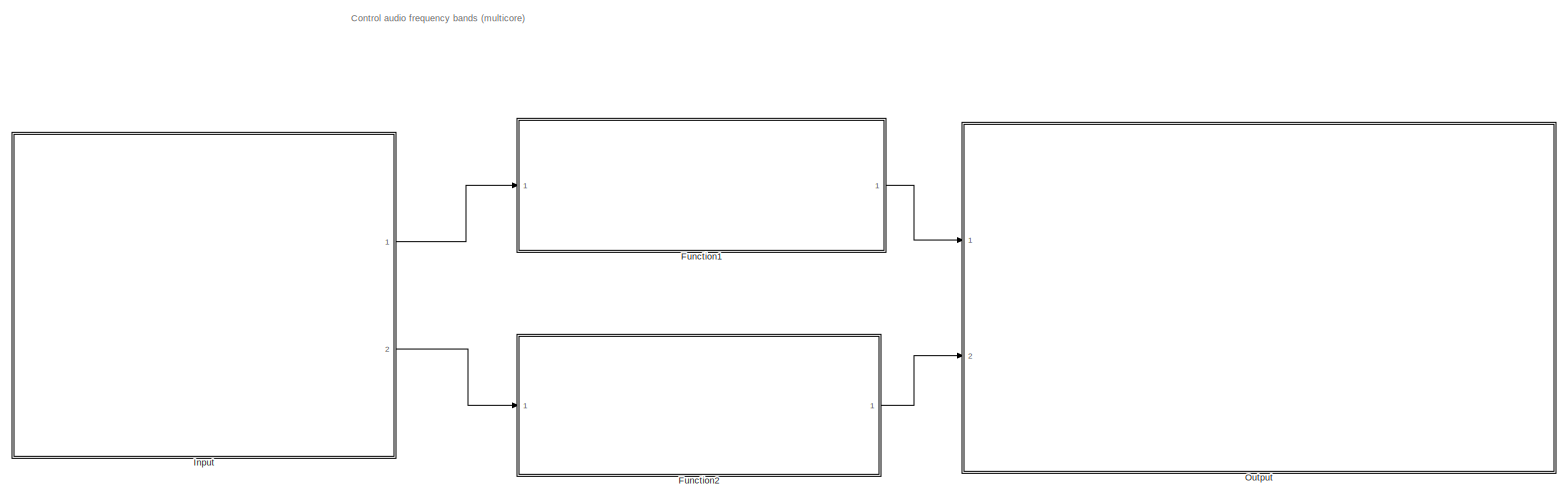
[diagram: root canvas - part 1/2, full width, middle band]
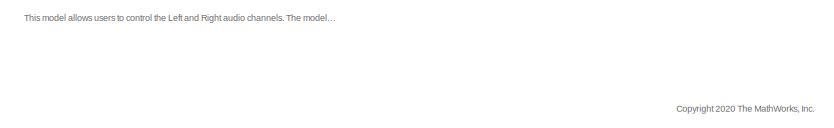
[diagram: root canvas - part 2/2, bottom left region]
MODEL slx_893cd9e0caa3
KIND model
CONFIG AbsTol = auto
CONFIG EnableMultiTasking = on
CONFIG FixedStep = auto
CONFIG MaxStep = auto
CONFIG MinStep = auto
CONFIG RelTol = 1e-3
CONFIG SampleTimeConstraint = Unconstrained
CONFIG SolverName = FixedStepAuto
CONFIG StartTime = 0.0
CONFIG StopTime = 10.0
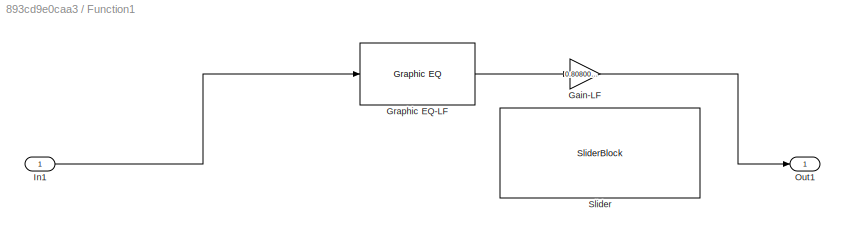
BLOCK [SubSystem] Function1
  Ports = [1, 1]
  RequestExecContextInheritance = off
  TreatAsAtomicUnit = on
BLOCK [Gain] Function1/Gain-LF
  Gain = 0.8080000000000001
  OutDataTypeStr = single
BLOCK [Reference] Function1/Graphic EQ-LF  REF=audiofilters/Graphic EQ
  Ports = [1, 1]
  SourceBlock = audiofilters/Graphic EQ
  SourceProductBaseCode = AU
  SourceType = audio.simulink.GraphicEQ
BLOCK [Inport] Function1/In1
BLOCK [Outport] Function1/Out1
BLOCK [SliderBlock] Function1/Slider
  LabelPosition = Bottom
  ScaleMax = 1
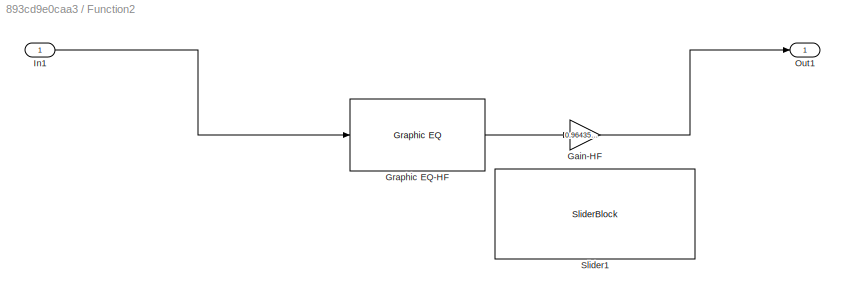
BLOCK [SubSystem] Function2
  Ports = [1, 1]
  RequestExecContextInheritance = off
  TreatAsAtomicUnit = on
BLOCK [Gain] Function2/Gain-HF
  Gain = 0.9643520823982061
  OutDataTypeStr = single
BLOCK [Reference] Function2/Graphic EQ-HF  REF=audiofilters/Graphic EQ
  Ports = [1, 1]
  SourceBlock = audiofilters/Graphic EQ
  SourceProductBaseCode = AU
  SourceType = audio.simulink.GraphicEQ
BLOCK [Inport] Function2/In1
BLOCK [Outport] Function2/Out1
BLOCK [SliderBlock] Function2/Slider1
  LabelPosition = Bottom
  ScaleMax = 1
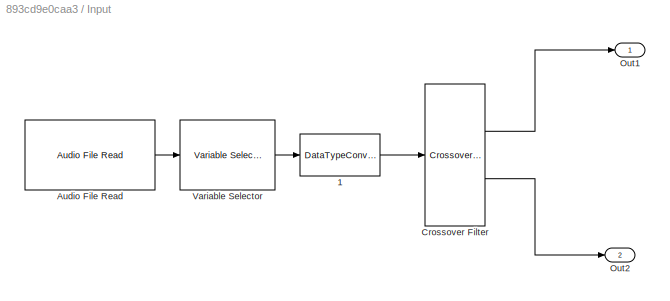
BLOCK [SubSystem] Input
  Ports = [0, 2]
  RequestExecContextInheritance = off
  TreatAsAtomicUnit = on
BLOCK [DataTypeConversion] Input/ 1
  OutDataTypeStr = single
  RndMeth = Floor
  SaturateOnIntegerOverflow = off
BLOCK [Reference] Input/Audio File Read  REF=raspberrypiAVlib/Audio File Read
  Ports = [0, 1]
  SourceBlock = raspberrypiAVlib/Audio File Read
  SourceProductBaseCode = RASPPI
  SourceType = codertarget.raspi.internal.RaspiAudioFileRead
BLOCK [Reference] Input/Crossover Filter  REF=audiofilters/Crossover Filter
  Ports = [1, 2]
  SourceBlock = audiofilters/Crossover Filter
  SourceProductBaseCode = AU
  SourceType = audio.simulink.crossover
BLOCK [Outport] Input/Out1
BLOCK [Outport] Input/Out2
  Port = 2
BLOCK [Reference] Input/Variable Selector  REF=dspindex/Variable
Selector
  Ports = [1, 1]
  SourceBlock = dspindex/Variable\nSelector
  SourceProductBaseCode = DS
  SourceType = Variable Selector
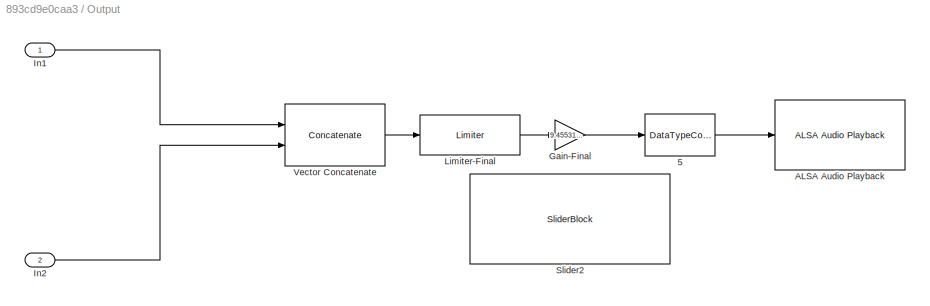
BLOCK [SubSystem] Output
  Ports = [2]
  RequestExecContextInheritance = off
  TreatAsAtomicUnit = on
BLOCK [DataTypeConversion] Output/ 5
  OutDataTypeStr = int16
  RndMeth = Floor
  SaturateOnIntegerOverflow = off
BLOCK [Reference] Output/ALSA Audio Playback  REF=raspberrypiAVlib/ALSA Audio Playback
  Ports = [1]
  SourceBlock = raspberrypiAVlib/ALSA Audio Playback
  SourceProductBaseCode = RASPPI
  SourceType = codertarget.raspi.internal.RaspiALSAAudioPlayback
BLOCK [Gain] Output/Gain-Final
  Gain = 9.455319667862447
  OutDataTypeStr = int16
BLOCK [Inport] Output/In1
BLOCK [Inport] Output/In2
  Port = 2
BLOCK [Reference] Output/Limiter-Final  REF=audiodynamicrange/Limiter
  Ports = [1, 1]
  SourceBlock = audiodynamicrange/Limiter
  SourceProductBaseCode = AU
  SourceType = audio.simulink.DynamicRangeLimiter
BLOCK [SliderBlock] Output/Slider2
  LabelPosition = Bottom
  ScaleMax = 10
BLOCK [Concatenate] Output/Vector Concatenate
  ConcatenateDimension = 2
  Mode = Multidimensional array
  Ports = [2, 1]
ANNOTATION (root): Control audio frequency bands (multicore)
ANNOTATION (root): This model allows users to control the Left and Right audio channels. The model is partitioned to execute concurrently on a multicore Raspberry Pi
ANNOTATION (root): <copyright redacted>
LINE Function1/Gain-LF:1 -> Function1/Out1:1
LINE Function1/Graphic EQ-LF:1 -> Function1/Gain-LF:1
LINE Function1/In1:1 -> Function1/Graphic EQ-LF:1
LINE Function1:1 -> Output:1
LINE Function2/Gain-HF:1 -> Function2/Out1:1
LINE Function2/Graphic EQ-HF:1 -> Function2/Gain-HF:1
LINE Function2/In1:1 -> Function2/Graphic EQ-HF:1
LINE Function2:1 -> Output:2
LINE Input/ 1:1 -> Input/Crossover Filter:1
LINE Input/Audio File Read:1 -> Input/Variable Selector:1
LINE Input/Crossover Filter:1 -> Input/Out1:1
LINE Input/Crossover Filter:2 -> Input/Out2:1
LINE Input/Variable Selector:1 -> Input/ 1:1
LINE Input:1 -> Function1:1
LINE Input:2 -> Function2:1
LINE Output/ 5:1 -> Output/ALSA Audio Playback:1
LINE Output/Gain-Final:1 -> Output/ 5:1
LINE Output/In1:1 -> Output/Vector Concatenate:1
LINE Output/In2:1 -> Output/Vector Concatenate:2
LINE Output/Limiter-Final:1 -> Output/Gain-Final:1
LINE Output/Vector Concatenate:1 -> Output/Limiter-Final:1
